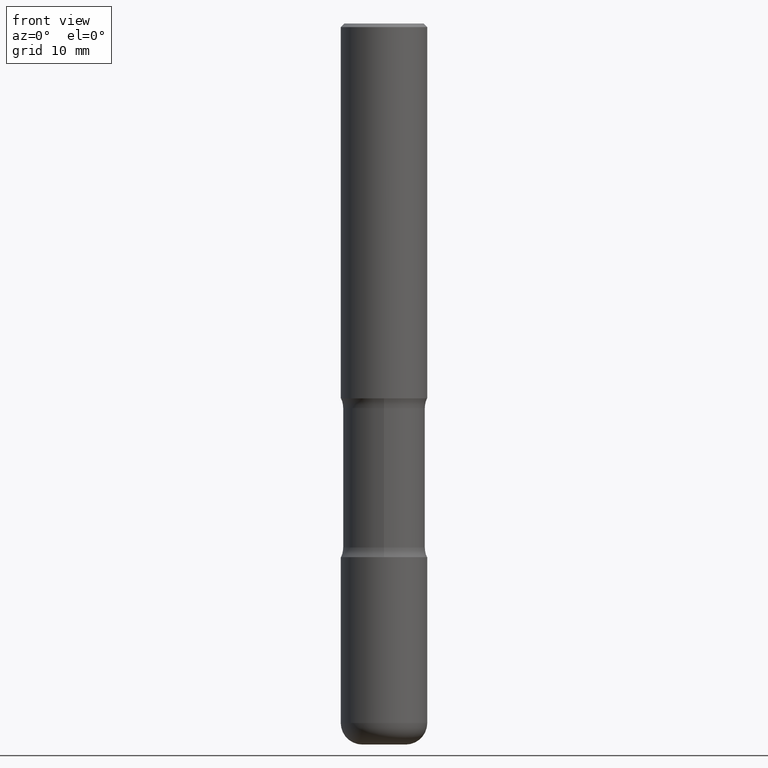
[diagram: clean part render]
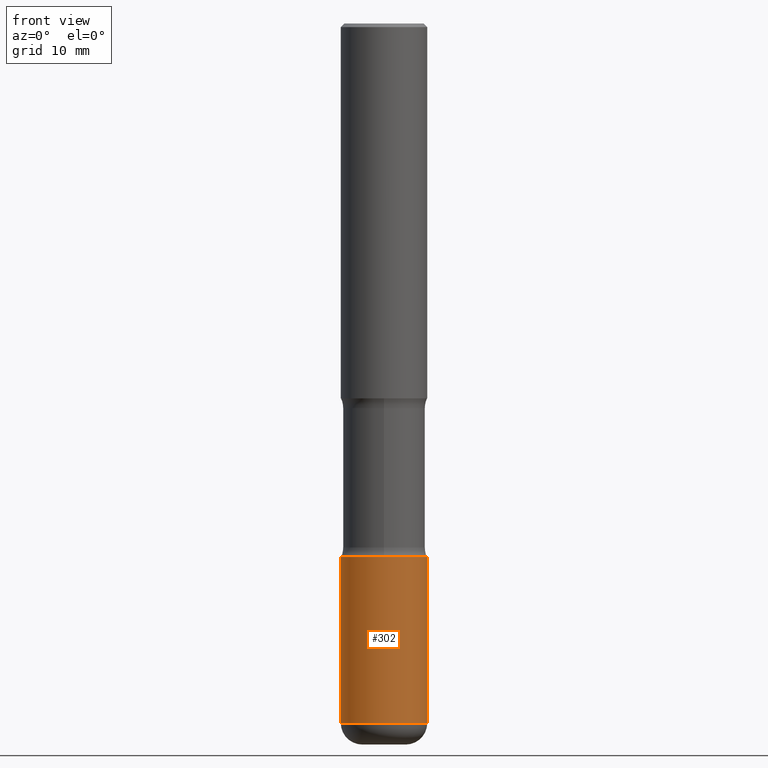
[diagram: same view with one face highlighted and labeled with its STEP entity id]
A machine part, front view. The second image highlights one B-rep face of the part: STEP entity #302.
In plain terms, the highlighted cylindrical surface (partial cylindrical patch) has radius 5.9995 mm, axis along (-0, 0, 1).
Its self-contained STEP definition (entity closure, byte-faithful):
#21 = ORIENTED_EDGE ( 'NONE', *, *, #491, .T. ) ;
#23 = DIRECTION ( 'NONE',  ( -2.445468806185136597E-29, 3.491481338843145583E-15, 1.000000000000000000 ) ) ;
#37 = EDGE_CURVE ( 'NONE', #45, #281, #348, .T. ) ;
#45 = VERTEX_POINT ( 'NONE', #478 ) ;
#46 = CIRCLE ( 'NONE', #172, 0.2362000000000002153 ) ;
#53 = CARTESIAN_POINT ( 'NONE',  ( 9.339000823940415305E-29, -1.333361808490808613E-14, -3.818899999999998851 ) ) ;
#78 = CARTESIAN_POINT ( 'NONE',  ( 0.000000000000000000, 0.000000000000000000, 0.000000000000000000 ) ) ;
#86 = ORIENTED_EDGE ( 'NONE', *, *, #37, .F. ) ;
#93 = EDGE_CURVE ( 'NONE', #45, #497, #46, .T. ) ;
#146 = ORIENTED_EDGE ( 'NONE', *, *, #93, .T. ) ;
#151 = CARTESIAN_POINT ( 'NONE',  ( 0.2362000000000001598, -1.649375784469497314E-15, 1.151752954443000929E-29 ) ) ;
#165 = DIRECTION ( 'NONE',  ( -2.445468806185136877E-29, 3.491481338843145188E-15, 1.000000000000000000 ) ) ;
#169 = CARTESIAN_POINT ( 'NONE',  ( -0.2362000000000001321, -1.007454796688149554E-14, -2.913400000000000212 ) ) ;
#172 = AXIS2_PLACEMENT_3D ( 'NONE', #53, #23, #455 ) ;
#190 = VERTEX_POINT ( 'NONE', #217 ) ;
#211 = DIRECTION ( 'NONE',  ( 1.000000000000000000, -6.982962677686266711E-15, 4.876176775795936353E-29 ) ) ;
#217 = CARTESIAN_POINT ( 'NONE',  ( 0.2362000000000001321, -1.182145751705511899E-14, -2.913400000000000212 ) ) ;
#230 = EDGE_CURVE ( 'NONE', #281, #190, #498, .T. ) ;
#238 = DIRECTION ( 'NONE',  ( -2.445468806185136877E-29, 3.491481338843145188E-15, 1.000000000000000000 ) ) ;
#276 = VECTOR ( 'NONE', #238, 39.37007874015748143 ) ;
#281 = VERTEX_POINT ( 'NONE', #169 ) ;
#284 = DIRECTION ( 'NONE',  ( -2.445468806185136597E-29, 3.491481338843145583E-15, 1.000000000000000000 ) ) ;
#299 = DIRECTION ( 'NONE',  ( -2.445468806185136597E-29, 3.491481338843145583E-15, 1.000000000000000000 ) ) ;
#302 = ADVANCED_FACE ( 'NONE', ( #437 ), #429, .T. ) ;
#348 = LINE ( 'NONE', #438, #404 ) ;
#398 = ORIENTED_EDGE ( 'NONE', *, *, #230, .F. ) ;
#404 = VECTOR ( 'NONE', #165, 39.37007874015748143 ) ;
#410 = LINE ( 'NONE', #151, #276 ) ;
#419 = CARTESIAN_POINT ( 'NONE',  ( 0.2362000000000002153, -1.498299386937758423E-14, -3.818899999999998851 ) ) ;
#429 = CYLINDRICAL_SURFACE ( 'NONE', #538, 0.2362000000000001598 ) ;
#437 = FACE_OUTER_BOUND ( 'NONE', #533, .T. ) ;
#438 = CARTESIAN_POINT ( 'NONE',  ( -0.2362000000000001598, 1.678301941865357775E-15, -1.161852468318209598E-29 ) ) ;
#442 = AXIS2_PLACEMENT_3D ( 'NONE', #503, #284, #474 ) ;
#455 = DIRECTION ( 'NONE',  ( 1.000000000000000000, -6.982962677686266711E-15, 0.000000000000000000 ) ) ;
#474 = DIRECTION ( 'NONE',  ( 1.000000000000000000, -6.982962677686269077E-15, 0.000000000000000000 ) ) ;
#478 = CARTESIAN_POINT ( 'NONE',  ( -0.2362000000000002153, -1.165531614304272658E-14, -3.818899999999998851 ) ) ;
#491 = EDGE_CURVE ( 'NONE', #497, #190, #410, .T. ) ;
#497 = VERTEX_POINT ( 'NONE', #419 ) ;
#498 = CIRCLE ( 'NONE', #442, 0.2362000000000001321 ) ;
#503 = CARTESIAN_POINT ( 'NONE',  ( 7.124628819939777829E-29, -1.017208173258562247E-14, -2.913400000000000212 ) ) ;
#533 = EDGE_LOOP ( 'NONE', ( #86, #146, #21, #398 ) ) ;
#538 = AXIS2_PLACEMENT_3D ( 'NONE', #78, #299, #211 ) ;